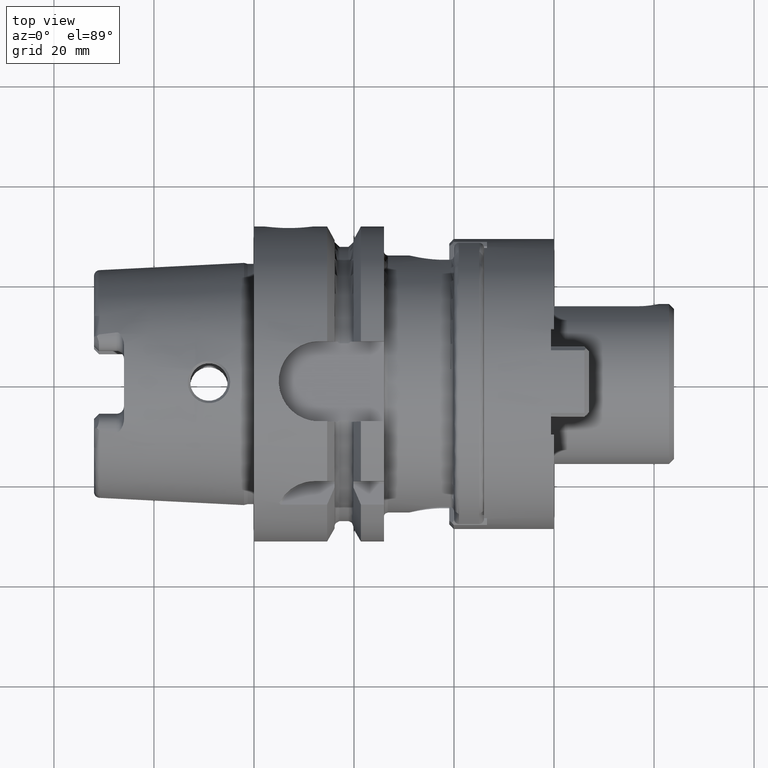
[diagram: clean part render]
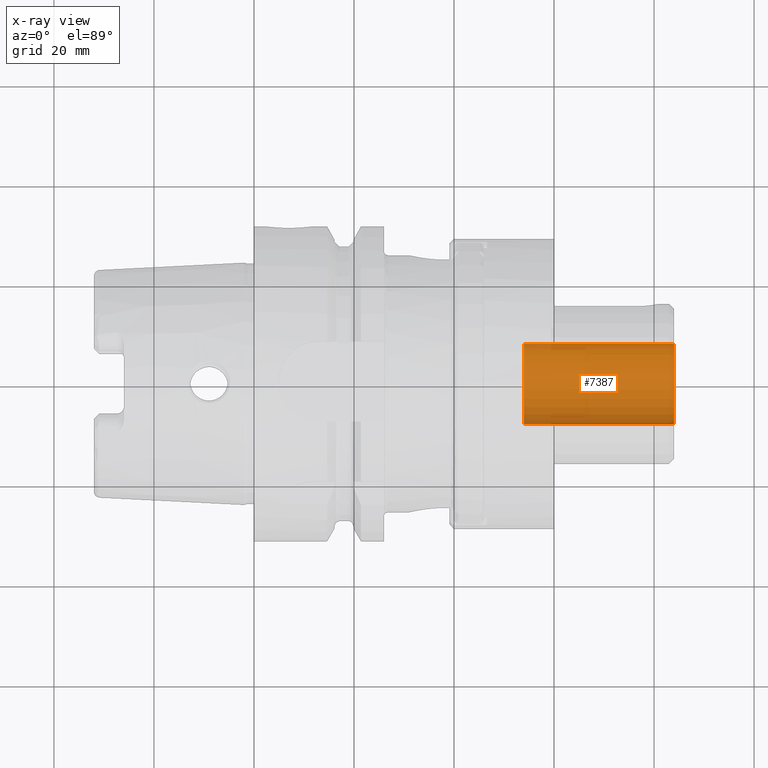
[diagram: x-ray — body ghosted, one internal face saturated and labeled with its STEP entity id]
A machine part, top view, then the same camera in x-ray: the body is ghosted and one INTERNAL B-rep face — a face not visible from any outside direction — is saturated and labeled: STEP entity #7387.
In plain terms, the highlighted cylindrical surface (partial cylindrical patch) has radius 8 mm, axis along (1, 0, 0).
Its self-contained STEP definition (entity closure, byte-faithful):
#7322=CARTESIAN_POINT('',(8.4E1,0.E0,0.E0));
#7323=DIRECTION('',(-1.E0,0.E0,0.E0));
#7324=DIRECTION('',(0.E0,1.E0,0.E0));
#7325=AXIS2_PLACEMENT_3D('',#7322,#7323,#7324);
#7332=DIRECTION('',(-1.E0,0.E0,0.E0));
#7333=VECTOR('',#7332,3.E1);
#7334=CARTESIAN_POINT('',(8.4E1,8.E0,0.E0));
#7335=LINE('',#7334,#7333);
#7336=DIRECTION('',(-1.E0,0.E0,0.E0));
#7337=VECTOR('',#7336,3.E1);
#7338=CARTESIAN_POINT('',(8.4E1,-8.E0,0.E0));
#7339=LINE('',#7338,#7337);
#7340=CARTESIAN_POINT('',(5.4E1,0.E0,0.E0));
#7341=DIRECTION('',(1.E0,0.E0,0.E0));
#7342=DIRECTION('',(0.E0,-1.E0,0.E0));
#7343=AXIS2_PLACEMENT_3D('',#7340,#7341,#7342);
#7360=CARTESIAN_POINT('',(5.4E1,-8.E0,0.E0));
#7361=CARTESIAN_POINT('',(5.4E1,8.E0,0.E0));
#7362=VERTEX_POINT('',#7360);
#7363=VERTEX_POINT('',#7361);
#7364=CARTESIAN_POINT('',(8.4E1,-8.E0,0.E0));
#7365=CARTESIAN_POINT('',(8.4E1,8.E0,0.E0));
#7366=VERTEX_POINT('',#7364);
#7367=VERTEX_POINT('',#7365);
#7372=CARTESIAN_POINT('',(3.443367445015E1,0.E0,0.E0));
#7373=DIRECTION('',(1.E0,0.E0,0.E0));
#7374=DIRECTION('',(0.E0,-1.E0,0.E0));
#7375=AXIS2_PLACEMENT_3D('',#7372,#7373,#7374);
#7376=CYLINDRICAL_SURFACE('',#7375,8.E0);
#7378=ORIENTED_EDGE('',*,*,#7377,.T.);
#7380=ORIENTED_EDGE('',*,*,#7379,.T.);
#7382=ORIENTED_EDGE('',*,*,#7381,.T.);
#7384=ORIENTED_EDGE('',*,*,#7383,.F.);
#7385=EDGE_LOOP('',(#7378,#7380,#7382,#7384));
#7386=FACE_OUTER_BOUND('',#7385,.F.);
#7387=ADVANCED_FACE('',(#7386),#7376,.F.);
#7326=CIRCLE('',#7325,8.E0);
#7344=CIRCLE('',#7343,8.E0);
#7377=EDGE_CURVE('',#7367,#7366,#7326,.T.);
#7379=EDGE_CURVE('',#7366,#7362,#7339,.T.);
#7381=EDGE_CURVE('',#7362,#7363,#7344,.T.);
#7383=EDGE_CURVE('',#7367,#7363,#7335,.T.);